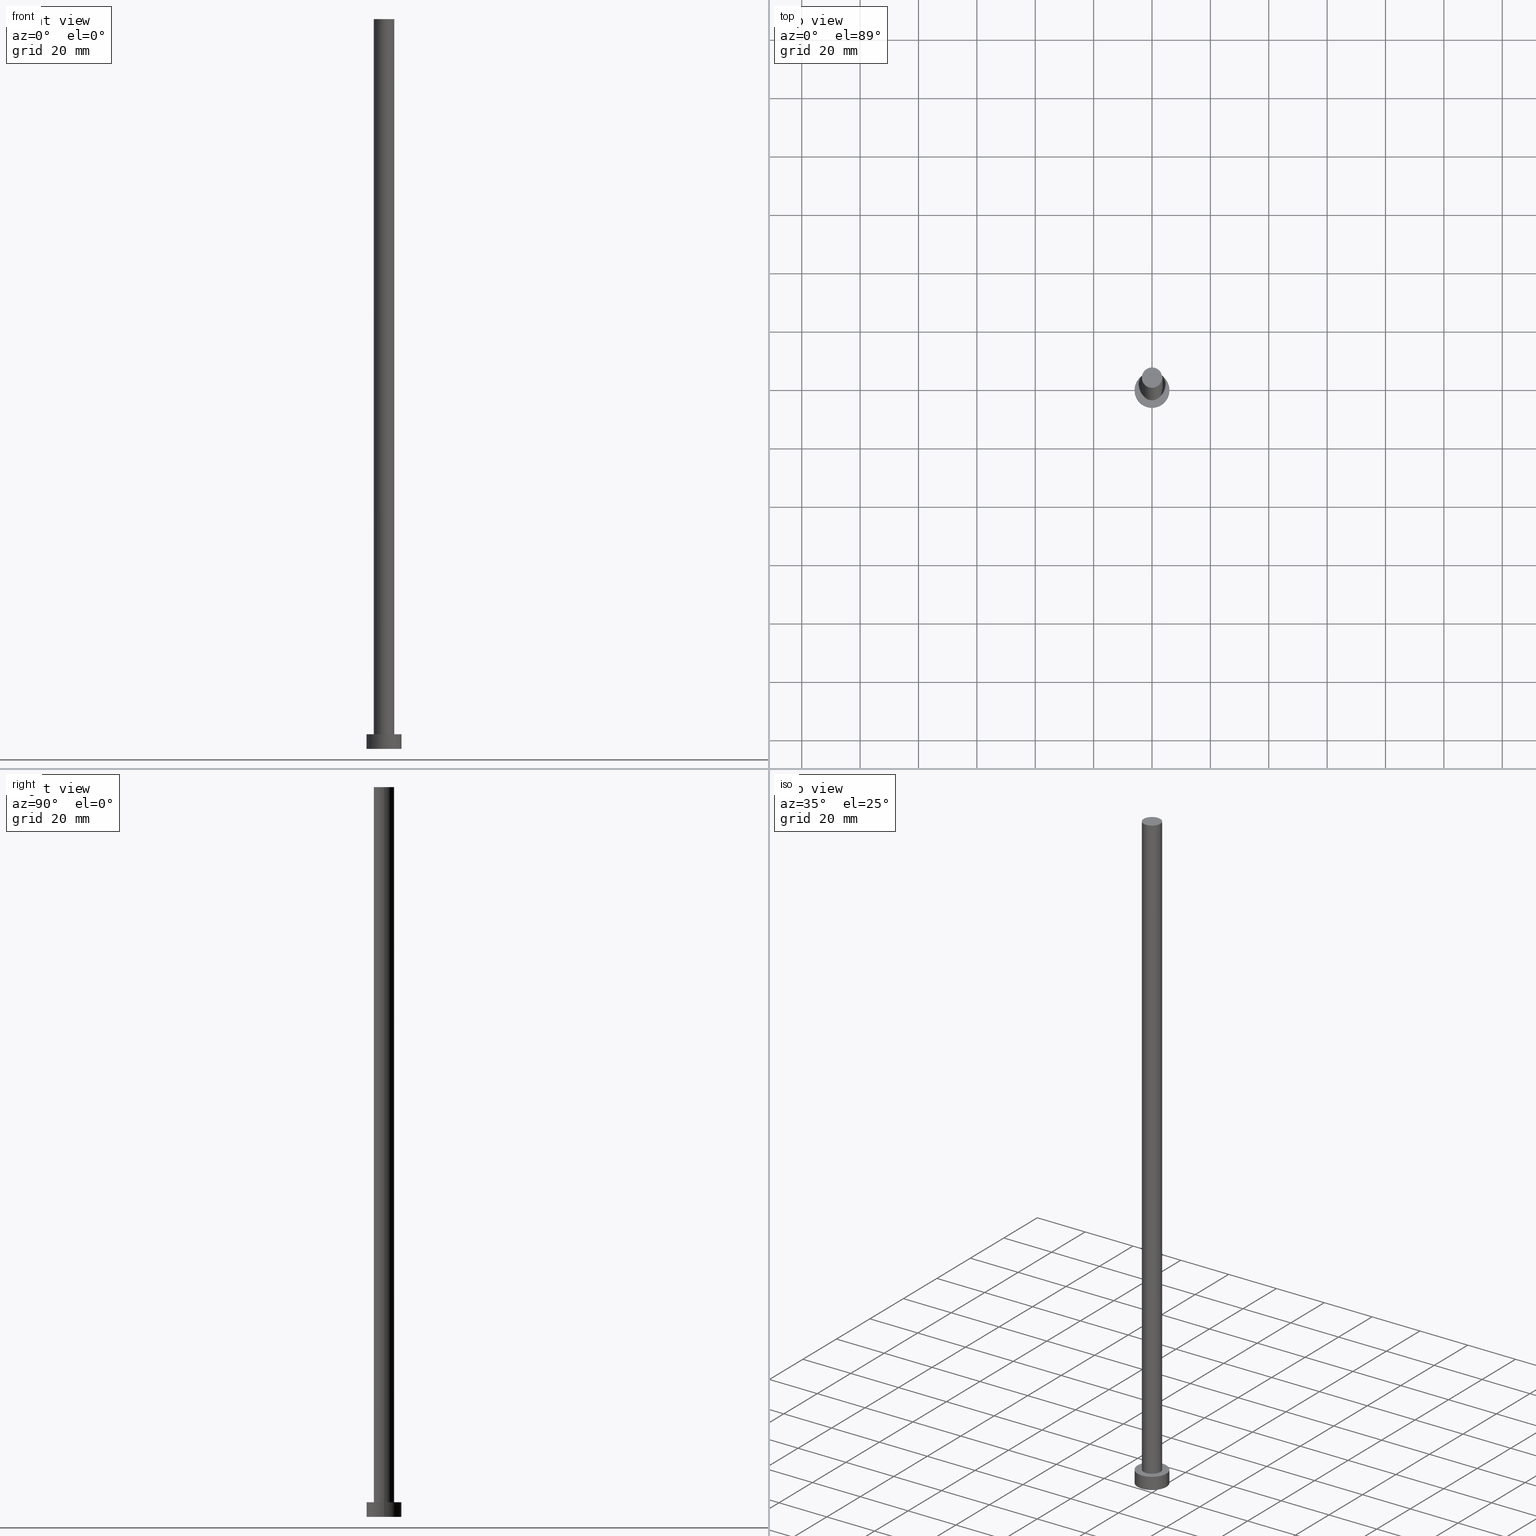
[diagram: canonical four-view strip — front | top / right | iso, engineering-drawing reading convention]
A machine part, canonical four-view strip (front | top / right | iso — engineering-drawing reading convention). The complete STEP part file that produces these views, byte-faithful:
ISO-10303-21;
HEADER;
FILE_DESCRIPTION (( 'STEP AP203' ),
    '1' );
FILE_NAME ('ffb2.STEP',
    '2023-02-13T14:49:07',
    ( '' ),
    ( '' ),
    'SwSTEP 2.0',
    'SolidWorks 2019',
    '' );
FILE_SCHEMA (( 'CONFIG_CONTROL_DESIGN' ));
ENDSEC;

DATA;
#1 = EDGE_CURVE ( 'NONE', #184, #10, #122, .T. ) ;
#2 = COORDINATED_UNIVERSAL_TIME_OFFSET ( 1, 0, .AHEAD. ) ;
#3 = PERSON_AND_ORGANIZATION_ROLE ( 'creator' ) ;
#4 = APPROVAL_STATUS ( 'not_yet_approved' ) ;
#5 = CALENDAR_DATE ( 2023, 13, 2 ) ;
#6 = ORIENTED_EDGE ( 'NONE', *, *, #1, .T. ) ;
#7 = FACE_OUTER_BOUND ( 'NONE', #154, .T. ) ;
#8 = ORIENTED_EDGE ( 'NONE', *, *, #151, .T. ) ;
#9 = CARTESIAN_POINT ( 'NONE',  ( -3.500000000000000000, 0.000000000000000000, 250.0000000000000000 ) ) ;
#10 = VERTEX_POINT ( 'NONE', #27 ) ;
#11 = DIRECTION ( 'NONE',  ( 0.000000000000000000, 0.000000000000000000, 1.000000000000000000 ) ) ;
#12 = EDGE_CURVE ( 'NONE', #46, #184, #215, .T. ) ;
#13 = CARTESIAN_POINT ( 'NONE',  ( 0.000000000000000000, 0.000000000000000000, 5.000000000000000000 ) ) ;
#14 = APPROVAL ( #4, 'NEUR�EN�' ) ;
#15 = AXIS2_PLACEMENT_3D ( 'NONE', #34, #128, #207 ) ;
#16 = CC_DESIGN_PERSON_AND_ORGANIZATION_ASSIGNMENT ( #210, #113, ( #179 ) ) ;
#17 = CC_DESIGN_APPROVAL ( #223, ( #179 ) ) ;
#18 = EDGE_CURVE ( 'NONE', #224, #10, #35, .T. ) ;
#19 = CARTESIAN_POINT ( 'NONE',  ( 0.000000000000000000, 0.000000000000000000, 0.000000000000000000 ) ) ;
#20 = EDGE_LOOP ( 'NONE', ( #243, #64, #206, #120 ) ) ;
#21 = CARTESIAN_POINT ( 'NONE',  ( 0.000000000000000000, 0.000000000000000000, 5.000000000000000000 ) ) ;
#22 = APPROVAL_DATE_TIME ( #119, #14 ) ;
#23 = DIRECTION ( 'NONE',  ( 0.000000000000000000, 0.000000000000000000, 1.000000000000000000 ) ) ;
#24 = DIRECTION ( 'NONE',  ( 0.000000000000000000, 0.000000000000000000, 1.000000000000000000 ) ) ;
#25 = DATE_TIME_ROLE ( 'creation_date' ) ;
#26 = VERTEX_POINT ( 'NONE', #180 ) ;
#27 = CARTESIAN_POINT ( 'NONE',  ( 6.000000000000000888, 7.347880794884120722E-16, 0.000000000000000000 ) ) ;
#28 = LINE ( 'NONE', #9, #255 ) ;
#29 = EDGE_LOOP ( 'NONE', ( #250, #6, #107, #182 ) ) ;
#30 = EDGE_CURVE ( 'NONE', #152, #114, #72, .T. ) ;
#31 = DIRECTION ( 'NONE',  ( 0.000000000000000000, 0.000000000000000000, 1.000000000000000000 ) ) ;
#32 = DIRECTION ( 'NONE',  ( -0.000000000000000000, -0.000000000000000000, -1.000000000000000000 ) ) ;
#33 = COORDINATED_UNIVERSAL_TIME_OFFSET ( 1, 0, .AHEAD. ) ;
#34 = CARTESIAN_POINT ( 'NONE',  ( 0.000000000000000000, 0.000000000000000000, 250.0000000000000000 ) ) ;
#35 = CIRCLE ( 'NONE', #38, 6.000000000000000888 ) ;
#36 = CC_DESIGN_APPROVAL ( #14, ( #49 ) ) ;
#37 = APPROVAL ( #133, 'NEUR�EN�' ) ;
#38 = AXIS2_PLACEMENT_3D ( 'NONE', #137, #199, #41 ) ;
#39 = APPROVAL_DATE_TIME ( #234, #223 ) ;
#40 =( GEOMETRIC_REPRESENTATION_CONTEXT ( 3 ) GLOBAL_UNCERTAINTY_ASSIGNED_CONTEXT ( ( #94 ) ) GLOBAL_UNIT_ASSIGNED_CONTEXT ( ( #76, #233, #57 ) ) REPRESENTATION_CONTEXT ( 'NONE', 'WORKASPACE' ) );
#41 = DIRECTION ( 'NONE',  ( 1.000000000000000000, 0.000000000000000000, 0.000000000000000000 ) ) ;
#42 = DATE_TIME_ROLE ( 'classification_date' ) ;
#43 = EDGE_CURVE ( 'NONE', #10, #224, #169, .T. ) ;
#44 = ORIENTED_EDGE ( 'NONE', *, *, #43, .F. ) ;
#45 = DIRECTION ( 'NONE',  ( 1.000000000000000000, 0.000000000000000000, -0.000000000000000000 ) ) ;
#46 = VERTEX_POINT ( 'NONE', #194 ) ;
#47 = ORGANIZATION ( 'NEUR�EN�', 'NEUR�EN�', '' ) ;
#48 = DIRECTION ( 'NONE',  ( -1.000000000000000000, 0.000000000000000000, 0.000000000000000000 ) ) ;
#49 = PRODUCT_DEFINITION ( 'NEZN�M�', '', #179, #251 ) ;
#50 = ORIENTED_EDGE ( 'NONE', *, *, #30, .T. ) ;
#51 = CC_DESIGN_PERSON_AND_ORGANIZATION_ASSIGNMENT ( #254, #132, ( #179 ) ) ;
#52 = CC_DESIGN_APPROVAL ( #37, ( #89 ) ) ;
#53 = CARTESIAN_POINT ( 'NONE',  ( 0.000000000000000000, 0.000000000000000000, 5.000000000000000000 ) ) ;
#54 = DATE_AND_TIME ( #191, #111 ) ;
#55 = EDGE_CURVE ( 'NONE', #26, #114, #195, .T. ) ;
#56 = DIRECTION ( 'NONE',  ( 1.000000000000000000, 0.000000000000000000, 0.000000000000000000 ) ) ;
#57 =( NAMED_UNIT ( * ) SI_UNIT ( $, .STERADIAN. ) SOLID_ANGLE_UNIT ( ) );
#58 = CLOSED_SHELL ( 'NONE', ( #232, #129, #193, #149, #61, #204, #248 ) ) ;
#59 = CARTESIAN_POINT ( 'NONE',  ( 0.000000000000000000, 0.000000000000000000, 0.000000000000000000 ) ) ;
#60 = COORDINATED_UNIVERSAL_TIME_OFFSET ( 1, 0, .AHEAD. ) ;
#61 = ADVANCED_FACE ( 'NONE', ( #7 ), #175, .F. ) ;
#62 = FACE_OUTER_BOUND ( 'NONE', #156, .T. ) ;
#63 = APPROVAL_STATUS ( 'not_yet_approved' ) ;
#64 = ORIENTED_EDGE ( 'NONE', *, *, #55, .T. ) ;
#65 = AXIS2_PLACEMENT_3D ( 'NONE', #59, #134, #118 ) ;
#66 = AXIS2_PLACEMENT_3D ( 'NONE', #231, #161, #48 ) ;
#67 = ORIENTED_EDGE ( 'NONE', *, *, #1, .F. ) ;
#68 = DIRECTION ( 'NONE',  ( -1.000000000000000000, 0.000000000000000000, 0.000000000000000000 ) ) ;
#69 = EDGE_CURVE ( 'NONE', #184, #46, #167, .T. ) ;
#70 = ADVANCED_BREP_SHAPE_REPRESENTATION ( 'ffb2', ( #166, #227 ), #40 ) ;
#71 = CYLINDRICAL_SURFACE ( 'NONE', #185, 3.500000000000000000 ) ;
#72 = CIRCLE ( 'NONE', #131, 3.500000000000000000 ) ;
#73 = EDGE_LOOP ( 'NONE', ( #198, #247 ) ) ;
#74 = EDGE_CURVE ( 'NONE', #26, #75, #127, .T. ) ;
#75 = VERTEX_POINT ( 'NONE', #155 ) ;
#76 =( LENGTH_UNIT ( ) NAMED_UNIT ( * ) SI_UNIT ( .MILLI., .METRE. ) );
#77 = CARTESIAN_POINT ( 'NONE',  ( 0.000000000000000000, 0.000000000000000000, 250.0000000000000000 ) ) ;
#78 = MECHANICAL_CONTEXT ( 'NONE', #252, 'mechanical' ) ;
#79 = DIRECTION ( 'NONE',  ( 0.000000000000000000, 0.000000000000000000, 1.000000000000000000 ) ) ;
#80 = COORDINATED_UNIVERSAL_TIME_OFFSET ( 1, 0, .AHEAD. ) ;
#81 = APPROVAL_ROLE ( '' ) ;
#82 = APPROVAL_DATE_TIME ( #214, #37 ) ;
#83 = LOCAL_TIME ( 15, 49, 7.000000000000000000, #33 ) ;
#84 = CARTESIAN_POINT ( 'NONE',  ( 0.000000000000000000, 0.000000000000000000, 0.000000000000000000 ) ) ;
#85 = CARTESIAN_POINT ( 'NONE',  ( 0.000000000000000000, 0.000000000000000000, 5.000000000000000000 ) ) ;
#86 = APPLICATION_CONTEXT ( 'configuration controlled 3d designs of mechanical parts and assemblies' ) ;
#87 = AXIS2_PLACEMENT_3D ( 'NONE', #230, #130, #112 ) ;
#88 = DIRECTION ( 'NONE',  ( -0.000000000000000000, -0.000000000000000000, -1.000000000000000000 ) ) ;
#89 = SECURITY_CLASSIFICATION ( '', '', #212 ) ;
#90 = ORIENTED_EDGE ( 'NONE', *, *, #30, .F. ) ;
#91 = ORIENTED_EDGE ( 'NONE', *, *, #12, .F. ) ;
#92 = CARTESIAN_POINT ( 'NONE',  ( 0.000000000000000000, 0.000000000000000000, 5.000000000000000000 ) ) ;
#93 = PERSON ( 'NEUR�EN�', 'NEUR�EN�', 'NEUR�EN�', ('NEUR�EN�'), ('NEUR�EN�'), ('NEUR�EN�') ) ;
#94 = UNCERTAINTY_MEASURE_WITH_UNIT (LENGTH_MEASURE( 1.000000000000000082E-05 ), #76, 'distance_accuracy_value', 'NONE');
#95 = AXIS2_PLACEMENT_3D ( 'NONE', #181, #79, #176 ) ;
#96 = AXIS2_PLACEMENT_3D ( 'NONE', #13, #200, #249 ) ;
#97 = LOCAL_TIME ( 15, 49, 7.000000000000000000, #2 ) ;
#98 = CC_DESIGN_DATE_AND_TIME_ASSIGNMENT ( #220, #25, ( #49 ) ) ;
#99 = PERSON_AND_ORGANIZATION ( #93, #47 ) ;
#100 = APPLICATION_PROTOCOL_DEFINITION ( 'international standard', 'config_control_design', 1994, #86 ) ;
#101 = CARTESIAN_POINT ( 'NONE',  ( 3.500000000000000000, 4.286263797015736595E-16, 250.0000000000000000 ) ) ;
#102 = ORIENTED_EDGE ( 'NONE', *, *, #110, .F. ) ;
#103 = CIRCLE ( 'NONE', #95, 3.500000000000000000 ) ;
#104 = FACE_OUTER_BOUND ( 'NONE', #117, .T. ) ;
#105 = VECTOR ( 'NONE', #219, 1000.000000000000000 ) ;
#106 = FACE_OUTER_BOUND ( 'NONE', #20, .T. ) ;
#107 = ORIENTED_EDGE ( 'NONE', *, *, #43, .T. ) ;
#108 = FACE_OUTER_BOUND ( 'NONE', #141, .T. ) ;
#109 = CARTESIAN_POINT ( 'NONE',  ( 6.000000000000000888, 7.347880794884120722E-16, 5.000000000000000000 ) ) ;
#110 = EDGE_CURVE ( 'NONE', #75, #26, #115, .T. ) ;
#111 = LOCAL_TIME ( 15, 49, 7.000000000000000000, #236 ) ;
#112 = DIRECTION ( 'NONE',  ( 1.000000000000000000, 0.000000000000000000, 0.000000000000000000 ) ) ;
#113 = PERSON_AND_ORGANIZATION_ROLE ( 'creator' ) ;
#114 = VERTEX_POINT ( 'NONE', #136 ) ;
#115 = CIRCLE ( 'NONE', #150, 3.500000000000000000 ) ;
#116 = PERSON_AND_ORGANIZATION ( #93, #47 ) ;
#117 = EDGE_LOOP ( 'NONE', ( #246, #102, #8, #50 ) ) ;
#118 = DIRECTION ( 'NONE',  ( 1.000000000000000000, 0.000000000000000000, 0.000000000000000000 ) ) ;
#119 = DATE_AND_TIME ( #135, #253 ) ;
#120 = ORIENTED_EDGE ( 'NONE', *, *, #151, .F. ) ;
#121 = ORIENTED_EDGE ( 'NONE', *, *, #145, .F. ) ;
#122 = LINE ( 'NONE', #221, #146 ) ;
#123 = FACE_BOUND ( 'NONE', #229, .T. ) ;
#124 = CC_DESIGN_DATE_AND_TIME_ASSIGNMENT ( #54, #42, ( #89 ) ) ;
#125 = APPROVAL_PERSON_ORGANIZATION ( #244, #223, #202 ) ;
#126 = FACE_OUTER_BOUND ( 'NONE', #73, .T. ) ;
#127 = CIRCLE ( 'NONE', #87, 3.500000000000000000 ) ;
#128 = DIRECTION ( 'NONE',  ( 0.000000000000000000, 0.000000000000000000, 1.000000000000000000 ) ) ;
#129 = ADVANCED_FACE ( 'NONE', ( #178 ), #139, .T. ) ;
#130 = DIRECTION ( 'NONE',  ( 0.000000000000000000, 0.000000000000000000, 1.000000000000000000 ) ) ;
#131 = AXIS2_PLACEMENT_3D ( 'NONE', #186, #11, #238 ) ;
#132 = PERSON_AND_ORGANIZATION_ROLE ( 'design_supplier' ) ;
#133 = APPROVAL_STATUS ( 'not_yet_approved' ) ;
#134 = DIRECTION ( 'NONE',  ( 0.000000000000000000, 0.000000000000000000, 1.000000000000000000 ) ) ;
#135 = CALENDAR_DATE ( 2023, 13, 2 ) ;
#136 = CARTESIAN_POINT ( 'NONE',  ( 3.500000000000000000, 4.286263797015736595E-16, 5.000000000000000000 ) ) ;
#137 = CARTESIAN_POINT ( 'NONE',  ( 0.000000000000000000, 0.000000000000000000, 0.000000000000000000 ) ) ;
#138 = CARTESIAN_POINT ( 'NONE',  ( -6.000000000000000888, 0.000000000000000000, 5.000000000000000000 ) ) ;
#139 = CYLINDRICAL_SURFACE ( 'NONE', #217, 6.000000000000000888 ) ;
#140 = AXIS2_PLACEMENT_3D ( 'NONE', #21, #31, #144 ) ;
#141 = EDGE_LOOP ( 'NONE', ( #67, #91, #197, #183 ) ) ;
#142 = LOCAL_TIME ( 15, 49, 7.000000000000000000, #80 ) ;
#143 = DIRECTION ( 'NONE',  ( -0.000000000000000000, -0.000000000000000000, -1.000000000000000000 ) ) ;
#144 = DIRECTION ( 'NONE',  ( 1.000000000000000000, 0.000000000000000000, 0.000000000000000000 ) ) ;
#145 = EDGE_CURVE ( 'NONE', #114, #152, #103, .T. ) ;
#146 = VECTOR ( 'NONE', #225, 1000.000000000000000 ) ;
#147 = DIRECTION ( 'NONE',  ( -1.000000000000000000, 0.000000000000000000, 0.000000000000000000 ) ) ;
#148 = CALENDAR_DATE ( 2023, 13, 2 ) ;
#149 = ADVANCED_FACE ( 'NONE', ( #123, #62 ), #218, .T. ) ;
#150 = AXIS2_PLACEMENT_3D ( 'NONE', #77, #23, #235 ) ;
#151 = EDGE_CURVE ( 'NONE', #75, #152, #28, .T. ) ;
#152 = VERTEX_POINT ( 'NONE', #158 ) ;
#153 = PRODUCT_DEFINITION_SHAPE ( 'NONE', 'NONE',  #49 ) ;
#154 = EDGE_LOOP ( 'NONE', ( #159, #44 ) ) ;
#155 = CARTESIAN_POINT ( 'NONE',  ( -3.500000000000000000, 0.000000000000000000, 250.0000000000000000 ) ) ;
#156 = EDGE_LOOP ( 'NONE', ( #165, #157 ) ) ;
#157 = ORIENTED_EDGE ( 'NONE', *, *, #69, .T. ) ;
#158 = CARTESIAN_POINT ( 'NONE',  ( -3.500000000000000000, 0.000000000000000000, 5.000000000000000000 ) ) ;
#159 = ORIENTED_EDGE ( 'NONE', *, *, #18, .F. ) ;
#160 = DIRECTION ( 'NONE',  ( 1.000000000000000000, 0.000000000000000000, -0.000000000000000000 ) ) ;
#161 = DIRECTION ( 'NONE',  ( -0.000000000000000000, -0.000000000000000000, -1.000000000000000000 ) ) ;
#162 = AXIS2_PLACEMENT_3D ( 'NONE', #92, #163, #209 ) ;
#163 = DIRECTION ( 'NONE',  ( -0.000000000000000000, -0.000000000000000000, -1.000000000000000000 ) ) ;
#164 = EDGE_CURVE ( 'NONE', #46, #224, #242, .T. ) ;
#165 = ORIENTED_EDGE ( 'NONE', *, *, #12, .T. ) ;
#166 = MANIFOLD_SOLID_BREP ( 'P�idat vysunut�m3', #58 ) ;
#167 = CIRCLE ( 'NONE', #96, 6.000000000000000888 ) ;
#168 = CC_DESIGN_PERSON_AND_ORGANIZATION_ASSIGNMENT ( #190, #170, ( #89 ) ) ;
#169 = CIRCLE ( 'NONE', #65, 6.000000000000000888 ) ;
#170 = PERSON_AND_ORGANIZATION_ROLE ( 'classification_officer' ) ;
#171 = APPROVAL_PERSON_ORGANIZATION ( #237, #37, #174 ) ;
#172 = PRODUCT ( 'ffb2', 'ffb2', '', ( #78 ) ) ;
#173 = PERSON_AND_ORGANIZATION ( #93, #47 ) ;
#174 = APPROVAL_ROLE ( '' ) ;
#175 = PLANE ( 'NONE',  #205 ) ;
#176 = DIRECTION ( 'NONE',  ( 1.000000000000000000, 0.000000000000000000, 0.000000000000000000 ) ) ;
#177 = PRODUCT_RELATED_PRODUCT_CATEGORY ( 'detail', '', ( #172 ) ) ;
#178 = FACE_OUTER_BOUND ( 'NONE', #29, .T. ) ;
#179 = PRODUCT_DEFINITION_FORMATION_WITH_SPECIFIED_SOURCE ( 'LIBOVOLN�', '', #172, .NOT_KNOWN. ) ;
#180 = CARTESIAN_POINT ( 'NONE',  ( 3.500000000000000000, 4.286263797015736595E-16, 250.0000000000000000 ) ) ;
#181 = CARTESIAN_POINT ( 'NONE',  ( 0.000000000000000000, 0.000000000000000000, 5.000000000000000000 ) ) ;
#182 = ORIENTED_EDGE ( 'NONE', *, *, #164, .F. ) ;
#183 = ORIENTED_EDGE ( 'NONE', *, *, #18, .T. ) ;
#184 = VERTEX_POINT ( 'NONE', #109 ) ;
#185 = AXIS2_PLACEMENT_3D ( 'NONE', #201, #32, #147 ) ;
#186 = CARTESIAN_POINT ( 'NONE',  ( 0.000000000000000000, 0.000000000000000000, 5.000000000000000000 ) ) ;
#187 = CYLINDRICAL_SURFACE ( 'NONE', #66, 3.500000000000000000 ) ;
#188 = CARTESIAN_POINT ( 'NONE',  ( -6.000000000000000888, 0.000000000000000000, 0.000000000000000000 ) ) ;
#189 = SHAPE_DEFINITION_REPRESENTATION ( #153, #70 ) ;
#190 = PERSON_AND_ORGANIZATION ( #93, #47 ) ;
#191 = CALENDAR_DATE ( 2023, 13, 2 ) ;
#192 = PERSON_AND_ORGANIZATION_ROLE ( 'design_owner' ) ;
#193 = ADVANCED_FACE ( 'NONE', ( #108 ), #226, .T. ) ;
#194 = CARTESIAN_POINT ( 'NONE',  ( -6.000000000000000888, 0.000000000000000000, 5.000000000000000000 ) ) ;
#195 = LINE ( 'NONE', #101, #245 ) ;
#196 = CC_DESIGN_SECURITY_CLASSIFICATION ( #89, ( #179 ) ) ;
#197 = ORIENTED_EDGE ( 'NONE', *, *, #164, .T. ) ;
#198 = ORIENTED_EDGE ( 'NONE', *, *, #110, .T. ) ;
#199 = DIRECTION ( 'NONE',  ( 0.000000000000000000, 0.000000000000000000, 1.000000000000000000 ) ) ;
#200 = DIRECTION ( 'NONE',  ( 0.000000000000000000, 0.000000000000000000, 1.000000000000000000 ) ) ;
#201 = CARTESIAN_POINT ( 'NONE',  ( 0.000000000000000000, 0.000000000000000000, 250.0000000000000000 ) ) ;
#202 = APPROVAL_ROLE ( '' ) ;
#203 = PLANE ( 'NONE',  #15 ) ;
#204 = ADVANCED_FACE ( 'NONE', ( #104 ), #71, .T. ) ;
#205 = AXIS2_PLACEMENT_3D ( 'NONE', #84, #24, #160 ) ;
#206 = ORIENTED_EDGE ( 'NONE', *, *, #145, .T. ) ;
#207 = DIRECTION ( 'NONE',  ( 1.000000000000000000, 0.000000000000000000, -0.000000000000000000 ) ) ;
#208 = CC_DESIGN_PERSON_AND_ORGANIZATION_ASSIGNMENT ( #116, #192, ( #172 ) ) ;
#209 = DIRECTION ( 'NONE',  ( -1.000000000000000000, 0.000000000000000000, 0.000000000000000000 ) ) ;
#210 = PERSON_AND_ORGANIZATION ( #93, #47 ) ;
#211 = APPROVAL_PERSON_ORGANIZATION ( #173, #14, #81 ) ;
#212 = SECURITY_CLASSIFICATION_LEVEL ( 'unclassified' ) ;
#213 = APPLICATION_PROTOCOL_DEFINITION ( 'international standard', 'config_control_design', 1994, #252 ) ;
#214 = DATE_AND_TIME ( #5, #97 ) ;
#215 = CIRCLE ( 'NONE', #140, 6.000000000000000888 ) ;
#216 = DIRECTION ( 'NONE',  ( 0.000000000000000000, 0.000000000000000000, 1.000000000000000000 ) ) ;
#217 = AXIS2_PLACEMENT_3D ( 'NONE', #53, #143, #68 ) ;
#218 = PLANE ( 'NONE',  #240 ) ;
#219 = DIRECTION ( 'NONE',  ( -0.000000000000000000, -0.000000000000000000, -1.000000000000000000 ) ) ;
#220 = DATE_AND_TIME ( #239, #142 ) ;
#221 = CARTESIAN_POINT ( 'NONE',  ( 6.000000000000000888, 7.347880794884120722E-16, 5.000000000000000000 ) ) ;
#222 = DIRECTION ( 'NONE',  ( 0.000000000000000000, 0.000000000000000000, 1.000000000000000000 ) ) ;
#223 = APPROVAL ( #63, 'NEUR�EN�' ) ;
#224 = VERTEX_POINT ( 'NONE', #188 ) ;
#225 = DIRECTION ( 'NONE',  ( -0.000000000000000000, -0.000000000000000000, -1.000000000000000000 ) ) ;
#226 = CYLINDRICAL_SURFACE ( 'NONE', #162, 6.000000000000000888 ) ;
#227 = AXIS2_PLACEMENT_3D ( 'NONE', #19, #216, #56 ) ;
#228 = CC_DESIGN_PERSON_AND_ORGANIZATION_ASSIGNMENT ( #99, #3, ( #49 ) ) ;
#229 = EDGE_LOOP ( 'NONE', ( #90, #121 ) ) ;
#230 = CARTESIAN_POINT ( 'NONE',  ( 0.000000000000000000, 0.000000000000000000, 250.0000000000000000 ) ) ;
#231 = CARTESIAN_POINT ( 'NONE',  ( 0.000000000000000000, 0.000000000000000000, 250.0000000000000000 ) ) ;
#232 = ADVANCED_FACE ( 'NONE', ( #106 ), #187, .T. ) ;
#233 =( NAMED_UNIT ( * ) PLANE_ANGLE_UNIT ( ) SI_UNIT ( $, .RADIAN. ) );
#234 = DATE_AND_TIME ( #148, #83 ) ;
#235 = DIRECTION ( 'NONE',  ( 1.000000000000000000, 0.000000000000000000, 0.000000000000000000 ) ) ;
#236 = COORDINATED_UNIVERSAL_TIME_OFFSET ( 1, 0, .AHEAD. ) ;
#237 = PERSON_AND_ORGANIZATION ( #93, #47 ) ;
#238 = DIRECTION ( 'NONE',  ( 1.000000000000000000, 0.000000000000000000, 0.000000000000000000 ) ) ;
#239 = CALENDAR_DATE ( 2023, 13, 2 ) ;
#240 = AXIS2_PLACEMENT_3D ( 'NONE', #85, #222, #45 ) ;
#241 = DIRECTION ( 'NONE',  ( -0.000000000000000000, -0.000000000000000000, -1.000000000000000000 ) ) ;
#242 = LINE ( 'NONE', #138, #105 ) ;
#243 = ORIENTED_EDGE ( 'NONE', *, *, #74, .F. ) ;
#244 = PERSON_AND_ORGANIZATION ( #93, #47 ) ;
#245 = VECTOR ( 'NONE', #241, 1000.000000000000000 ) ;
#246 = ORIENTED_EDGE ( 'NONE', *, *, #55, .F. ) ;
#247 = ORIENTED_EDGE ( 'NONE', *, *, #74, .T. ) ;
#248 = ADVANCED_FACE ( 'NONE', ( #126 ), #203, .T. ) ;
#249 = DIRECTION ( 'NONE',  ( 1.000000000000000000, 0.000000000000000000, 0.000000000000000000 ) ) ;
#250 = ORIENTED_EDGE ( 'NONE', *, *, #69, .F. ) ;
#251 = DESIGN_CONTEXT ( 'detailed design', #86, 'design' ) ;
#252 = APPLICATION_CONTEXT ( 'configuration controlled 3d designs of mechanical parts and assemblies' ) ;
#253 = LOCAL_TIME ( 15, 49, 7.000000000000000000, #60 ) ;
#254 = PERSON_AND_ORGANIZATION ( #93, #47 ) ;
#255 = VECTOR ( 'NONE', #88, 1000.000000000000000 ) ;
ENDSEC;
END-ISO-10303-21;
